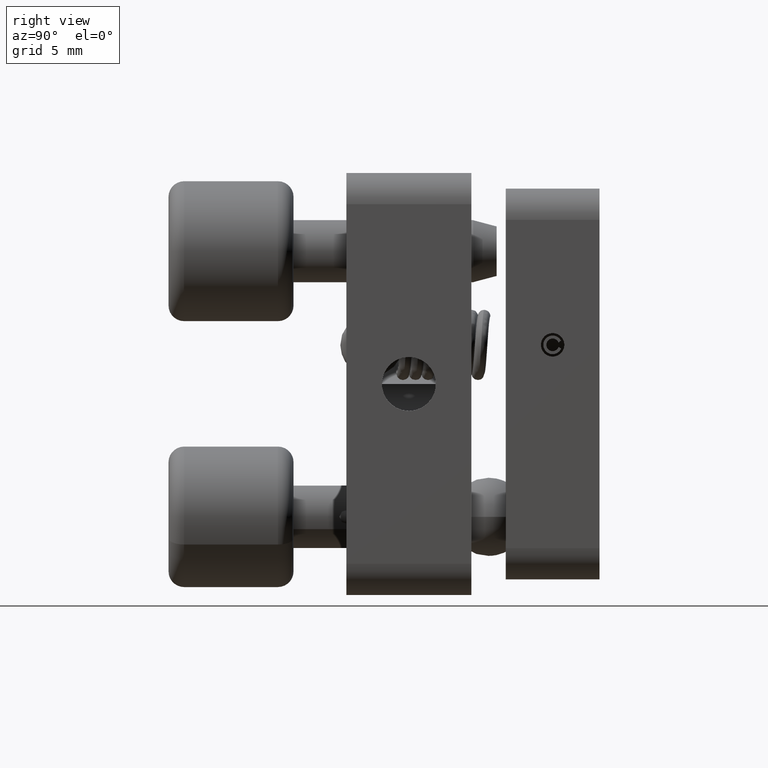
[diagram: clean part render]
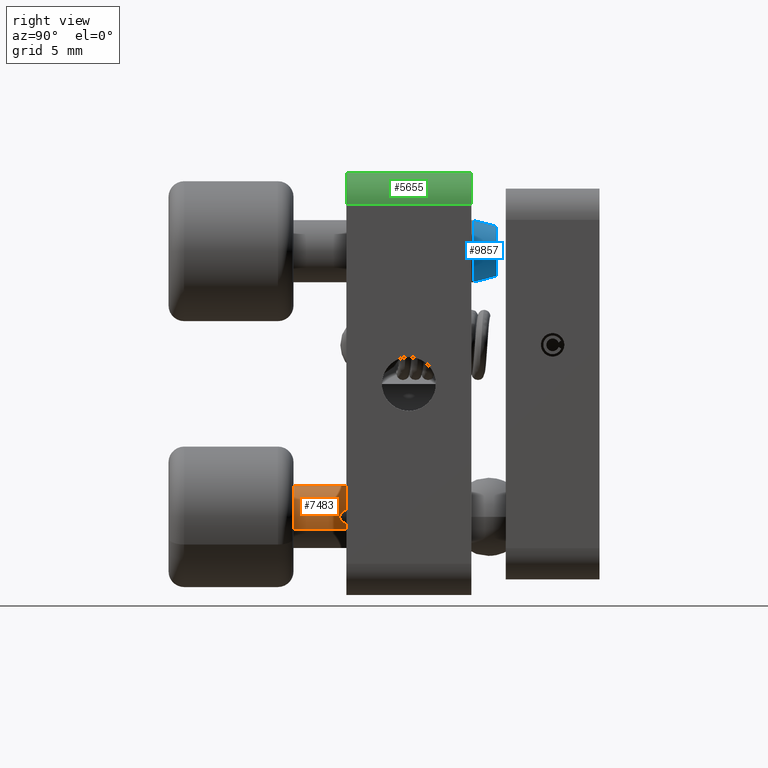
[diagram: same view with three faces highlighted in distinct colors, each labeled with its STEP entity id]
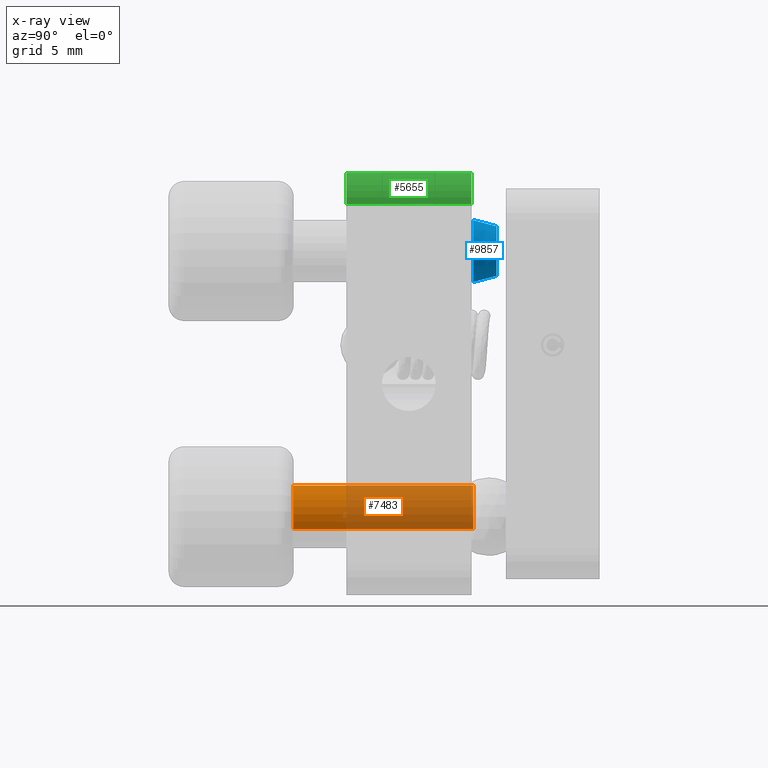
[diagram: x-ray of the same camera — body ghosted, the three highlighted faces saturated]
A machine part, right view with three faces highlighted in distinct colors.
The next image is the same camera in x-ray (body ghosted, the three faces saturated) — at least one of them is partly hidden behind the body in this view.
Their STEP definitions:

[orange] entity #7483 — the highlighted cylindrical surface (edge-blend (fillet) strip) has radius 2 mm, axis along (-0, -1, 0).
#116 = CIRCLE ( 'NONE', #6808, 2.000000000000004000 ) ;
#471 = CYLINDRICAL_SURFACE ( 'NONE', #2134, 2.000000000000000900 ) ;
#1109 = CARTESIAN_POINT ( 'NONE',  ( -9.225844521434984500, -15.49123321784737500, 16.50000000000000700 ) ) ;
#1155 = CARTESIAN_POINT ( 'NONE',  ( -11.06432913447280700, -3.991233217847379500, 17.28738448525683300 ) ) ;
#1975 = DIRECTION ( 'NONE',  ( 0.9192423065189123700, 0.0000000000000000000, -0.3936922426284141800 ) ) ;
#2134 = AXIS2_PLACEMENT_3D ( 'NONE', #2709, #8662, #6988 ) ;
#2267 = DIRECTION ( 'NONE',  ( -1.041072350597160300E-016, -1.000000000000000000, 8.501206851033395900E-017 ) ) ;
#2709 = CARTESIAN_POINT ( 'NONE',  ( -9.225844521434986200, -69.32864545455748800, 16.50000000000001100 ) ) ;
#3059 = ORIENTED_EDGE ( 'NONE', *, *, #9873, .F. ) ;
#3142 = CIRCLE ( 'NONE', #9542, 2.000000000000000400 ) ;
#3570 = LINE ( 'NONE', #6509, #7840 ) ;
#3784 = ORIENTED_EDGE ( 'NONE', *, *, #10239, .F. ) ;
#3790 = FACE_OUTER_BOUND ( 'NONE', #7088, .T. ) ;
#4957 = CARTESIAN_POINT ( 'NONE',  ( -9.225844521434980900, -3.991233217847379500, 16.50000000000000700 ) ) ;
#5009 = ORIENTED_EDGE ( 'NONE', *, *, #8412, .T. ) ;
#5137 = VECTOR ( 'NONE', #6660, 1000.000000000000000 ) ;
#5833 = DIRECTION ( 'NONE',  ( 0.9192423065189127000, 0.0000000000000000000, -0.3936922426284130700 ) ) ;
#6045 = VERTEX_POINT ( 'NONE', #10278 ) ;
#6238 = VERTEX_POINT ( 'NONE', #10390 ) ;
#6436 = CARTESIAN_POINT ( 'NONE',  ( -7.387359908397159300, -69.32864545455748800, 15.71261551474318500 ) ) ;
#6509 = CARTESIAN_POINT ( 'NONE',  ( -11.06432913447281200, -69.32864545455748800, 17.28738448525684000 ) ) ;
#6660 = DIRECTION ( 'NONE',  ( -1.041072350597160300E-016, -1.000000000000000000, 8.501206851033395900E-017 ) ) ;
#6808 = AXIS2_PLACEMENT_3D ( 'NONE', #1109, #7063, #1975 ) ;
#6988 = DIRECTION ( 'NONE',  ( 0.9192423065189129200, 0.0000000000000000000, -0.3936922426284130100 ) ) ;
#7063 = DIRECTION ( 'NONE',  ( -1.041072350597160300E-016, -1.000000000000000000, 8.501206851033395900E-017 ) ) ;
#7088 = EDGE_LOOP ( 'NONE', ( #8954, #5009, #3059, #3784 ) ) ;
#7413 = LINE ( 'NONE', #6436, #5137 ) ;
#7483 = ADVANCED_FACE ( 'NONE', ( #3790 ), #471, .T. ) ;
#7840 = VECTOR ( 'NONE', #2267, 1000.000000000000000 ) ;
#8412 = EDGE_CURVE ( 'NONE', #10899, #6238, #3570, .T. ) ;
#8662 = DIRECTION ( 'NONE',  ( -1.041072350597160300E-016, -1.000000000000000000, 8.501206851033395900E-017 ) ) ;
#8954 = ORIENTED_EDGE ( 'NONE', *, *, #10289, .T. ) ;
#9488 = CARTESIAN_POINT ( 'NONE',  ( -7.387359908397154800, -3.991233217847379500, 15.71261551474318100 ) ) ;
#9542 = AXIS2_PLACEMENT_3D ( 'NONE', #4957, #10901, #5833 ) ;
#9785 = VERTEX_POINT ( 'NONE', #9488 ) ;
#9873 = EDGE_CURVE ( 'NONE', #6045, #6238, #116, .T. ) ;
#10239 = EDGE_CURVE ( 'NONE', #9785, #6045, #7413, .T. ) ;
#10278 = CARTESIAN_POINT ( 'NONE',  ( -7.387359908397155700, -15.49123321784737500, 15.71261551474317700 ) ) ;
#10289 = EDGE_CURVE ( 'NONE', #9785, #10899, #3142, .T. ) ;
#10390 = CARTESIAN_POINT ( 'NONE',  ( -11.06432913447280900, -15.49123321784737500, 17.28738448525683700 ) ) ;
#10899 = VERTEX_POINT ( 'NONE', #1155 ) ;
#10901 = DIRECTION ( 'NONE',  ( -1.041072350597160300E-016, -1.000000000000000000, 8.501206851033395900E-017 ) ) ;

[blue] entity #9857 — the highlighted conical surface has half-angle 14.931 deg.
#220 = DIRECTION ( 'NONE',  ( -1.238150394019946100E-016, -1.000000000000000000, -5.645428605362232300E-018 ) ) ;
#384 = CIRCLE ( 'NONE', #7363, 1.600000000000003400 ) ;
#2361 = CARTESIAN_POINT ( 'NONE',  ( 8.055669917639289000, -3.991233217847379500, 31.51991171393986900 ) ) ;
#2676 = VECTOR ( 'NONE', #5029, 1000.000000000000100 ) ;
#3162 = FACE_OUTER_BOUND ( 'NONE', #10269, .T. ) ;
#3390 = ORIENTED_EDGE ( 'NONE', *, *, #9907, .T. ) ;
#3431 = AXIS2_PLACEMENT_3D ( 'NONE', #5298, #220, #6179 ) ;
#3584 = CARTESIAN_POINT ( 'NONE',  ( 7.774155478565030600, -3.991233217847379500, 33.50000000000004300 ) ) ;
#3658 = DIRECTION ( 'NONE',  ( -1.238150394019946100E-016, -1.000000000000000000, -5.645428605362232300E-018 ) ) ;
#4203 = CARTESIAN_POINT ( 'NONE',  ( 7.999367029824436600, -2.491233217847377700, 31.91592937115190400 ) ) ;
#4673 = ORIENTED_EDGE ( 'NONE', *, *, #10851, .F. ) ;
#4840 = ORIENTED_EDGE ( 'NONE', *, *, #6602, .F. ) ;
#5013 = VECTOR ( 'NONE', #7444, 1000.000000000000100 ) ;
#5029 = DIRECTION ( 'NONE',  ( -0.03626787827143948500, -0.9662349396012461800, 0.2550973980648648700 ) ) ;
#5298 = CARTESIAN_POINT ( 'NONE',  ( 7.774155478565030600, -3.991233217847379500, 33.50000000000004300 ) ) ;
#5908 = VERTEX_POINT ( 'NONE', #4203 ) ;
#6179 = DIRECTION ( 'NONE',  ( -0.1407572195371292200, 0.0000000000000000000, 0.9900441430300855900 ) ) ;
#6235 = AXIS2_PLACEMENT_3D ( 'NONE', #3584, #9521, #8736 ) ;
#6602 = EDGE_CURVE ( 'NONE', #5908, #10231, #9510, .T. ) ;
#6857 = CARTESIAN_POINT ( 'NONE',  ( 7.492641039490772300, -3.991233217847379500, 35.48008828606021600 ) ) ;
#7205 = LINE ( 'NONE', #10105, #2676 ) ;
#7363 = AXIS2_PLACEMENT_3D ( 'NONE', #8770, #3658, #9586 ) ;
#7444 = DIRECTION ( 'NONE',  ( 0.03626787827143922900, -0.9662349396012461800, -0.2550973980648648700 ) ) ;
#7667 = CIRCLE ( 'NONE', #3431, 2.000000000000002200 ) ;
#8086 = EDGE_CURVE ( 'NONE', #10323, #9596, #7205, .T. ) ;
#8358 = CARTESIAN_POINT ( 'NONE',  ( 7.548943927305624700, -2.491233217847377700, 35.08407062884818100 ) ) ;
#8736 = DIRECTION ( 'NONE',  ( -0.1407572195371292200, 0.0000000000000000000, 0.9900441430300855900 ) ) ;
#8770 = CARTESIAN_POINT ( 'NONE',  ( 7.774155478565031500, -2.491233217847377700, 33.50000000000004300 ) ) ;
#8890 = CONICAL_SURFACE ( 'NONE', #6235, 2.000000000000002200, 0.2606023917473409000 ) ;
#9510 = LINE ( 'NONE', #2361, #5013 ) ;
#9521 = DIRECTION ( 'NONE',  ( -1.238150394019946100E-016, -1.000000000000000000, -5.645428605362232300E-018 ) ) ;
#9586 = DIRECTION ( 'NONE',  ( -0.1407572195371293300, 0.0000000000000000000, 0.9900441430300854800 ) ) ;
#9596 = VERTEX_POINT ( 'NONE', #6857 ) ;
#9771 = CARTESIAN_POINT ( 'NONE',  ( 8.055669917639289000, -3.991233217847379500, 31.51991171393986900 ) ) ;
#9857 = ADVANCED_FACE ( 'NONE', ( #3162 ), #8890, .T. ) ;
#9907 = EDGE_CURVE ( 'NONE', #5908, #10323, #384, .T. ) ;
#10105 = CARTESIAN_POINT ( 'NONE',  ( 7.492641039490772300, -3.991233217847379500, 35.48008828606021600 ) ) ;
#10178 = ORIENTED_EDGE ( 'NONE', *, *, #8086, .T. ) ;
#10231 = VERTEX_POINT ( 'NONE', #9771 ) ;
#10269 = EDGE_LOOP ( 'NONE', ( #4840, #3390, #10178, #4673 ) ) ;
#10323 = VERTEX_POINT ( 'NONE', #8358 ) ;
#10851 = EDGE_CURVE ( 'NONE', #10231, #9596, #7667, .T. ) ;

[green] entity #5655 — the highlighted cylindrical surface (edge-blend (fillet) strip) has radius 2 mm, axis along (0, 1, 0).
#16 = ORIENTED_EDGE ( 'NONE', *, *, #7110, .T. ) ;
#729 = ORIENTED_EDGE ( 'NONE', *, *, #7469, .T. ) ;
#1000 = CARTESIAN_POINT ( 'NONE',  ( 12.77415547856502100, -12.11123321784738100, 36.50000000000000700 ) ) ;
#1306 = CARTESIAN_POINT ( 'NONE',  ( 10.77415547856502300, -12.11123321784738100, 36.50000000000000700 ) ) ;
#1804 = CYLINDRICAL_SURFACE ( 'NONE', #2877, 2.000000000000001800 ) ;
#1838 = VERTEX_POINT ( 'NONE', #5930 ) ;
#2172 = DIRECTION ( 'NONE',  ( 0.0000000000000000000, 0.0000000000000000000, 1.000000000000000000 ) ) ;
#2223 = VECTOR ( 'NONE', #7394, 1000.000000000000000 ) ;
#2765 = CARTESIAN_POINT ( 'NONE',  ( 10.77415547856502300, -12.11123321784738100, 36.50000000000000700 ) ) ;
#2877 = AXIS2_PLACEMENT_3D ( 'NONE', #2765, #7852, #3638 ) ;
#3638 = DIRECTION ( 'NONE',  ( 0.0000000000000000000, 0.0000000000000000000, 1.000000000000000000 ) ) ;
#3657 = AXIS2_PLACEMENT_3D ( 'NONE', #1306, #7251, #2172 ) ;
#3707 = CARTESIAN_POINT ( 'NONE',  ( 10.77415547856502300, -4.111233217847382300, 36.50000000000000700 ) ) ;
#4574 = DIRECTION ( 'NONE',  ( 0.0000000000000000000, 0.0000000000000000000, 1.000000000000000000 ) ) ;
#4727 = LINE ( 'NONE', #6555, #2223 ) ;
#4979 = CARTESIAN_POINT ( 'NONE',  ( 10.77415547856502300, -12.11123321784738100, 38.50000000000000700 ) ) ;
#4980 = VERTEX_POINT ( 'NONE', #6908 ) ;
#5222 = DIRECTION ( 'NONE',  ( 0.0000000000000000000, 1.000000000000000000, 0.0000000000000000000 ) ) ;
#5548 = VERTEX_POINT ( 'NONE', #9400 ) ;
#5655 = ADVANCED_FACE ( 'NONE', ( #9355 ), #1804, .T. ) ;
#5902 = ORIENTED_EDGE ( 'NONE', *, *, #6408, .F. ) ;
#5930 = CARTESIAN_POINT ( 'NONE',  ( 10.77415547856502300, -4.111233217847382300, 38.50000000000000700 ) ) ;
#6063 = LINE ( 'NONE', #1000, #8052 ) ;
#6408 = EDGE_CURVE ( 'NONE', #1838, #4980, #8024, .T. ) ;
#6555 = CARTESIAN_POINT ( 'NONE',  ( 10.77415547856502300, -12.11123321784738100, 38.50000000000000700 ) ) ;
#6691 = EDGE_LOOP ( 'NONE', ( #5902, #8500, #16, #729 ) ) ;
#6824 = AXIS2_PLACEMENT_3D ( 'NONE', #3707, #9633, #4574 ) ;
#6908 = CARTESIAN_POINT ( 'NONE',  ( 12.77415547856502100, -4.111233217847382300, 36.50000000000000700 ) ) ;
#7110 = EDGE_CURVE ( 'NONE', #9040, #5548, #8336, .T. ) ;
#7251 = DIRECTION ( 'NONE',  ( 0.0000000000000000000, 1.000000000000000000, 0.0000000000000000000 ) ) ;
#7319 = EDGE_CURVE ( 'NONE', #9040, #1838, #4727, .T. ) ;
#7394 = DIRECTION ( 'NONE',  ( 0.0000000000000000000, 1.000000000000000000, 0.0000000000000000000 ) ) ;
#7469 = EDGE_CURVE ( 'NONE', #5548, #4980, #6063, .T. ) ;
#7852 = DIRECTION ( 'NONE',  ( 0.0000000000000000000, 1.000000000000000000, 0.0000000000000000000 ) ) ;
#8024 = CIRCLE ( 'NONE', #6824, 2.000000000000001800 ) ;
#8052 = VECTOR ( 'NONE', #5222, 1000.000000000000000 ) ;
#8336 = CIRCLE ( 'NONE', #3657, 2.000000000000001800 ) ;
#8500 = ORIENTED_EDGE ( 'NONE', *, *, #7319, .F. ) ;
#9040 = VERTEX_POINT ( 'NONE', #4979 ) ;
#9355 = FACE_OUTER_BOUND ( 'NONE', #6691, .T. ) ;
#9400 = CARTESIAN_POINT ( 'NONE',  ( 12.77415547856502100, -12.11123321784738100, 36.50000000000000700 ) ) ;
#9633 = DIRECTION ( 'NONE',  ( 0.0000000000000000000, 1.000000000000000000, 0.0000000000000000000 ) ) ;